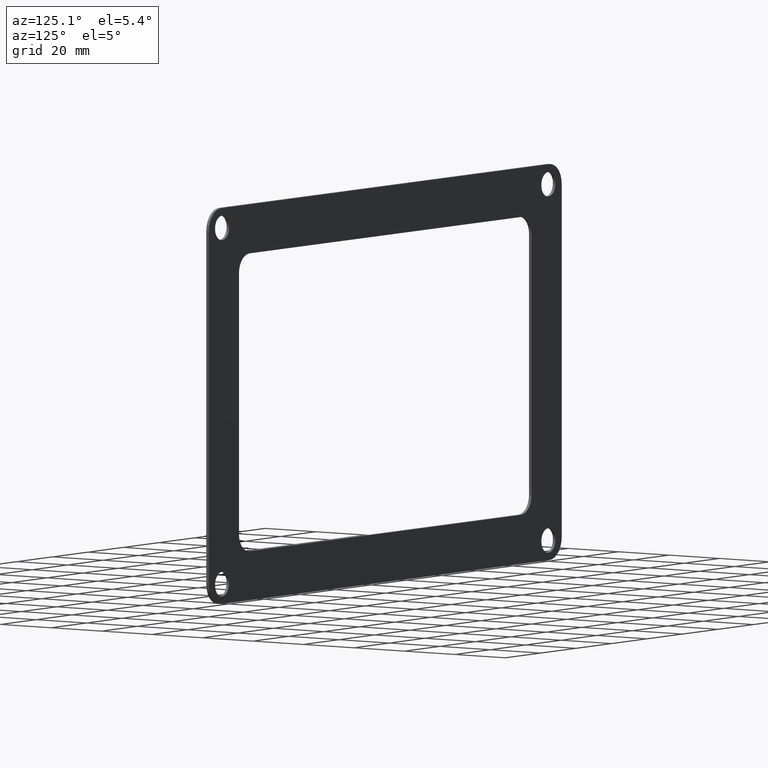
[diagram: clean part render]
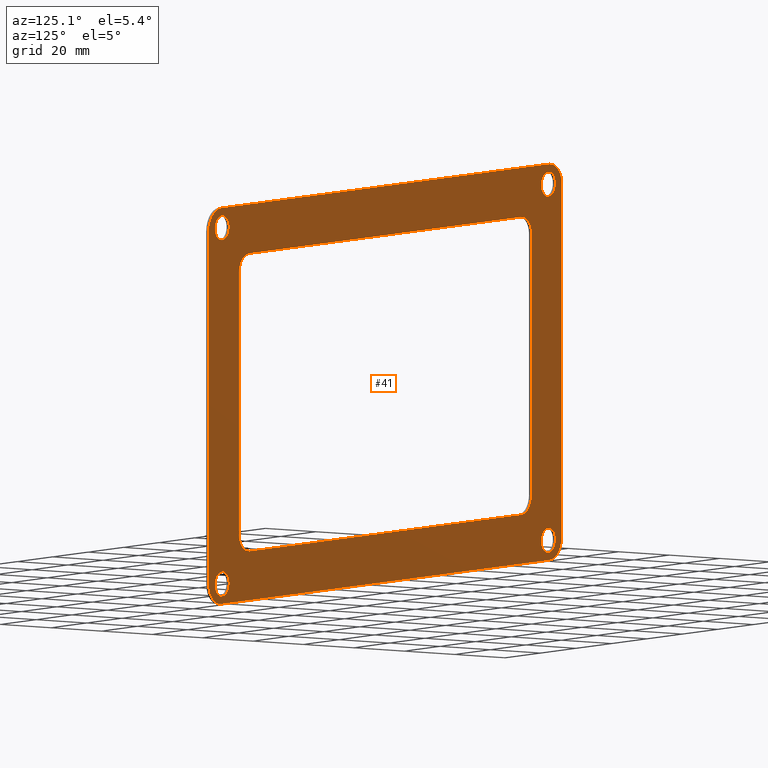
[diagram: same view with one face highlighted and labeled with its STEP entity id]
A machine part, auxiliary view. The second image highlights one B-rep face of the part: STEP entity #41.
In plain terms, the highlighted planar face has unit normal (-0, 1, 0).
Its self-contained STEP definition (entity closure, byte-faithful):
#41=ADVANCED_FACE('',(#82,#83,#84,#85,#86,#87),#81,.T.);
#81=PLANE('',#349);
#82=FACE_OUTER_BOUND('',#350,.T.);
#83=FACE_BOUND('',#351,.T.);
#84=FACE_BOUND('',#352,.T.);
#85=FACE_BOUND('',#353,.T.);
#86=FACE_BOUND('',#354,.T.);
#87=FACE_BOUND('',#355,.T.);
#346=CARTESIAN_POINT('',(-1.09500000000E+002,0.00000000000E+000,-7.45000000000E+001));
#347=DIRECTION('',(-0.00000000000E+000,1.00000000000E+000,0.00000000000E+000));
#348=DIRECTION('',(0.00000000000E+000,0.00000000000E+000,1.00000000000E+000));
#349=AXIS2_PLACEMENT_3D('',#346,#347,#348);
#350=EDGE_LOOP('',(#500,#501,#502,#503,#504,#505,#506,#507));
#351=EDGE_LOOP('',(#508,#509));
#352=EDGE_LOOP('',(#510,#511,#512,#513,#514,#515,#516,#517));
#353=EDGE_LOOP('',(#518,#519));
#354=EDGE_LOOP('',(#520,#521));
#355=EDGE_LOOP('',(#522,#523));
#500=ORIENTED_EDGE('',*,*,#644,.F.);
#501=ORIENTED_EDGE('',*,*,#645,.F.);
#502=ORIENTED_EDGE('',*,*,#646,.F.);
#503=ORIENTED_EDGE('',*,*,#647,.F.);
#504=ORIENTED_EDGE('',*,*,#648,.F.);
#505=ORIENTED_EDGE('',*,*,#649,.F.);
#506=ORIENTED_EDGE('',*,*,#650,.F.);
#507=ORIENTED_EDGE('',*,*,#651,.F.);
#508=ORIENTED_EDGE('',*,*,#652,.T.);
#509=ORIENTED_EDGE('',*,*,#653,.T.);
#510=ORIENTED_EDGE('',*,*,#654,.T.);
#511=ORIENTED_EDGE('',*,*,#655,.T.);
#512=ORIENTED_EDGE('',*,*,#656,.T.);
#513=ORIENTED_EDGE('',*,*,#657,.T.);
#514=ORIENTED_EDGE('',*,*,#658,.T.);
#515=ORIENTED_EDGE('',*,*,#659,.T.);
#516=ORIENTED_EDGE('',*,*,#660,.T.);
#517=ORIENTED_EDGE('',*,*,#661,.T.);
#518=ORIENTED_EDGE('',*,*,#662,.T.);
#519=ORIENTED_EDGE('',*,*,#663,.T.);
#520=ORIENTED_EDGE('',*,*,#664,.T.);
#521=ORIENTED_EDGE('',*,*,#665,.T.);
#522=ORIENTED_EDGE('',*,*,#666,.T.);
#523=ORIENTED_EDGE('',*,*,#667,.T.);
#644=EDGE_CURVE('',#860,#861,#862,.T.);
#645=EDGE_CURVE('',#868,#860,#869,.T.);
#646=EDGE_CURVE('',#875,#868,#876,.T.);
#647=EDGE_CURVE('',#882,#875,#883,.T.);
#648=EDGE_CURVE('',#889,#882,#890,.T.);
#649=EDGE_CURVE('',#896,#889,#897,.T.);
#650=EDGE_CURVE('',#903,#896,#904,.T.);
#651=EDGE_CURVE('',#861,#903,#910,.T.);
#652=EDGE_CURVE('',#916,#917,#918,.T.);
#653=EDGE_CURVE('',#917,#916,#924,.T.);
#654=EDGE_CURVE('',#930,#931,#932,.T.);
#655=EDGE_CURVE('',#931,#938,#939,.T.);
#656=EDGE_CURVE('',#938,#945,#946,.T.);
#657=EDGE_CURVE('',#945,#952,#953,.T.);
#658=EDGE_CURVE('',#952,#959,#960,.T.);
#659=EDGE_CURVE('',#959,#966,#967,.T.);
#660=EDGE_CURVE('',#966,#973,#974,.T.);
#661=EDGE_CURVE('',#973,#930,#980,.T.);
#662=EDGE_CURVE('',#986,#987,#988,.T.);
#663=EDGE_CURVE('',#987,#986,#994,.T.);
#664=EDGE_CURVE('',#1000,#1001,#1002,.T.);
#665=EDGE_CURVE('',#1001,#1000,#1008,.T.);
#666=EDGE_CURVE('',#1014,#1015,#1016,.T.);
#667=EDGE_CURVE('',#1015,#1014,#1022,.T.);
#860=VERTEX_POINT('',#1284);
#861=VERTEX_POINT('',#1285);
#862=CIRCLE('',#1289,7.00000000000E+000);
#868=VERTEX_POINT('',#1290);
#869=LINE('',#1291,#1292);
#875=VERTEX_POINT('',#1294);
#876=CIRCLE('',#1298,7.00000000000E+000);
#882=VERTEX_POINT('',#1299);
#883=LINE('',#1300,#1301);
#889=VERTEX_POINT('',#1303);
#890=CIRCLE('',#1307,7.00000000000E+000);
#896=VERTEX_POINT('',#1308);
#897=LINE('',#1309,#1310);
#903=VERTEX_POINT('',#1312);
#904=CIRCLE('',#1316,7.00000000000E+000);
#910=LINE('',#1317,#1318);
#916=VERTEX_POINT('',#1320);
#917=VERTEX_POINT('',#1321);
#918=CIRCLE('',#1325,4.00000000000E+000);
#924=CIRCLE('',#1329,4.00000000000E+000);
#930=VERTEX_POINT('',#1330);
#931=VERTEX_POINT('',#1331);
#932=CIRCLE('',#1335,6.00000000000E+000);
#938=VERTEX_POINT('',#1336);
#939=LINE('',#1337,#1338);
#945=VERTEX_POINT('',#1340);
#946=CIRCLE('',#1344,6.00000000000E+000);
#952=VERTEX_POINT('',#1345);
#953=LINE('',#1346,#1347);
#959=VERTEX_POINT('',#1349);
#960=CIRCLE('',#1353,6.00000000000E+000);
#966=VERTEX_POINT('',#1354);
#967=LINE('',#1355,#1356);
#973=VERTEX_POINT('',#1358);
#974=CIRCLE('',#1362,6.00000000000E+000);
#980=LINE('',#1363,#1364);
#986=VERTEX_POINT('',#1366);
#987=VERTEX_POINT('',#1367);
#988=CIRCLE('',#1371,4.00000000000E+000);
#994=CIRCLE('',#1375,4.00000000000E+000);
#1000=VERTEX_POINT('',#1376);
#1001=VERTEX_POINT('',#1377);
#1002=CIRCLE('',#1381,4.00000000000E+000);
#1008=CIRCLE('',#1385,4.00000000000E+000);
#1014=VERTEX_POINT('',#1386);
#1015=VERTEX_POINT('',#1387);
#1016=CIRCLE('',#1391,4.00000000000E+000);
#1022=CIRCLE('',#1395,4.00000000000E+000);
#1284=CARTESIAN_POINT('',(-9.25000000000E+001,0.00000000000E+000,6.45000000000E+001));
#1285=CARTESIAN_POINT('',(-9.95000000000E+001,0.00000000000E+000,5.75000000000E+001));
#1286=CARTESIAN_POINT('',(-9.25000000000E+001,0.00000000000E+000,5.75000000000E+001));
#1287=DIRECTION('',(0.00000000000E+000,-1.00000000000E+000,0.00000000000E+000));
#1288=DIRECTION('',(-0.00000000000E+000,-0.00000000000E+000,-1.00000000000E+000));
#1289=AXIS2_PLACEMENT_3D('',#1286,#1287,#1288);
#1290=CARTESIAN_POINT('',(9.25000000000E+001,0.00000000000E+000,6.45000000000E+001));
#1291=CARTESIAN_POINT('',(9.25000000000E+001,0.00000000000E+000,6.45000000000E+001));
#1292=VECTOR('',#1293,1.85000000000E+002);
#1293=DIRECTION('',(-1.00000000000E+000,0.00000000000E+000,0.00000000000E+000));
#1294=CARTESIAN_POINT('',(9.95000000000E+001,0.00000000000E+000,5.75000000000E+001));
#1295=CARTESIAN_POINT('',(9.25000000000E+001,0.00000000000E+000,5.75000000000E+001));
#1296=DIRECTION('',(0.00000000000E+000,-1.00000000000E+000,0.00000000000E+000));
#1297=DIRECTION('',(-0.00000000000E+000,-0.00000000000E+000,-1.00000000000E+000));
#1298=AXIS2_PLACEMENT_3D('',#1295,#1296,#1297);
#1299=CARTESIAN_POINT('',(9.95000000000E+001,0.00000000000E+000,-5.75000000000E+001));
#1300=CARTESIAN_POINT('',(9.95000000000E+001,0.00000000000E+000,-5.75000000000E+001));
#1301=VECTOR('',#1302,1.15000000000E+002);
#1302=DIRECTION('',(0.00000000000E+000,0.00000000000E+000,1.00000000000E+000));
#1303=CARTESIAN_POINT('',(9.25000000000E+001,0.00000000000E+000,-6.45000000000E+001));
#1304=CARTESIAN_POINT('',(9.25000000000E+001,0.00000000000E+000,-5.75000000000E+001));
#1305=DIRECTION('',(0.00000000000E+000,-1.00000000000E+000,0.00000000000E+000));
#1306=DIRECTION('',(-0.00000000000E+000,-0.00000000000E+000,-1.00000000000E+000));
#1307=AXIS2_PLACEMENT_3D('',#1304,#1305,#1306);
#1308=CARTESIAN_POINT('',(-9.25000000000E+001,0.00000000000E+000,-6.45000000000E+001));
#1309=CARTESIAN_POINT('',(-9.25000000000E+001,0.00000000000E+000,-6.45000000000E+001));
#1310=VECTOR('',#1311,1.85000000000E+002);
#1311=DIRECTION('',(1.00000000000E+000,0.00000000000E+000,0.00000000000E+000));
#1312=CARTESIAN_POINT('',(-9.95000000000E+001,0.00000000000E+000,-5.75000000000E+001));
#1313=CARTESIAN_POINT('',(-9.25000000000E+001,0.00000000000E+000,-5.75000000000E+001));
#1314=DIRECTION('',(0.00000000000E+000,-1.00000000000E+000,0.00000000000E+000));
#1315=DIRECTION('',(-0.00000000000E+000,-0.00000000000E+000,-1.00000000000E+000));
#1316=AXIS2_PLACEMENT_3D('',#1313,#1314,#1315);
#1317=CARTESIAN_POINT('',(-9.95000000000E+001,0.00000000000E+000,5.75000000000E+001));
#1318=VECTOR('',#1319,1.15000000000E+002);
#1319=DIRECTION('',(0.00000000000E+000,0.00000000000E+000,-1.00000000000E+000));
#1320=CARTESIAN_POINT('',(-9.20000000000E+001,0.00000000000E+000,-5.40000000000E+001));
#1321=CARTESIAN_POINT('',(-9.20000000000E+001,0.00000000000E+000,-6.20000000000E+001));
#1322=CARTESIAN_POINT('',(-9.20000000000E+001,0.00000000000E+000,-5.80000000000E+001));
#1323=DIRECTION('',(0.00000000000E+000,-1.00000000000E+000,0.00000000000E+000));
#1324=DIRECTION('',(-1.22460635382E-016,0.00000000000E+000,1.00000000000E+000));
#1325=AXIS2_PLACEMENT_3D('',#1322,#1323,#1324);
#1326=CARTESIAN_POINT('',(-9.20000000000E+001,0.00000000000E+000,-5.80000000000E+001));
#1327=DIRECTION('',(0.00000000000E+000,-1.00000000000E+000,0.00000000000E+000));
#1328=DIRECTION('',(-1.22460635382E-016,0.00000000000E+000,1.00000000000E+000));
#1329=AXIS2_PLACEMENT_3D('',#1326,#1327,#1328);
#1330=CARTESIAN_POINT('',(-8.25000000001E+001,0.00000000000E+000,-4.25000000000E+001));
#1331=CARTESIAN_POINT('',(-7.65000000001E+001,0.00000000000E+000,-4.85000000000E+001));
#1332=CARTESIAN_POINT('',(-7.65000000001E+001,0.00000000000E+000,-4.25000000000E+001));
#1333=DIRECTION('',(0.00000000000E+000,-1.00000000000E+000,0.00000000000E+000));
#1334=DIRECTION('',(-0.00000000000E+000,-0.00000000000E+000,-1.00000000000E+000));
#1335=AXIS2_PLACEMENT_3D('',#1332,#1333,#1334);
#1336=CARTESIAN_POINT('',(7.64999999999E+001,0.00000000000E+000,-4.85000000000E+001));
#1337=CARTESIAN_POINT('',(-7.65000000001E+001,0.00000000000E+000,-4.85000000000E+001));
#1338=VECTOR('',#1339,1.53000000000E+002);
#1339=DIRECTION('',(1.00000000000E+000,0.00000000000E+000,0.00000000000E+000));
#1340=CARTESIAN_POINT('',(8.24999999999E+001,0.00000000000E+000,-4.25000000000E+001));
#1341=CARTESIAN_POINT('',(7.64999999999E+001,0.00000000000E+000,-4.25000000000E+001));
#1342=DIRECTION('',(0.00000000000E+000,-1.00000000000E+000,0.00000000000E+000));
#1343=DIRECTION('',(-0.00000000000E+000,-0.00000000000E+000,-1.00000000000E+000));
#1344=AXIS2_PLACEMENT_3D('',#1341,#1342,#1343);
#1345=CARTESIAN_POINT('',(8.25000000001E+001,0.00000000000E+000,4.25000000000E+001));
#1346=CARTESIAN_POINT('',(8.24999999999E+001,0.00000000000E+000,-4.25000000000E+001));
#1347=VECTOR('',#1348,8.50000000000E+001);
#1348=DIRECTION('',(2.20351841349E-012,0.00000000000E+000,1.00000000000E+000));
#1349=CARTESIAN_POINT('',(7.65000000001E+001,0.00000000000E+000,4.85000000000E+001));
#1350=CARTESIAN_POINT('',(7.65000000001E+001,0.00000000000E+000,4.25000000000E+001));
#1351=DIRECTION('',(0.00000000000E+000,-1.00000000000E+000,0.00000000000E+000));
#1352=DIRECTION('',(-0.00000000000E+000,-0.00000000000E+000,-1.00000000000E+000));
#1353=AXIS2_PLACEMENT_3D('',#1350,#1351,#1352);
#1354=CARTESIAN_POINT('',(-7.64999999999E+001,0.00000000000E+000,4.85000000000E+001));
#1355=CARTESIAN_POINT('',(7.65000000001E+001,0.00000000000E+000,4.85000000000E+001));
#1356=VECTOR('',#1357,1.53000000000E+002);
#1357=DIRECTION('',(-1.00000000000E+000,0.00000000000E+000,0.00000000000E+000));
#1358=CARTESIAN_POINT('',(-8.24999999999E+001,0.00000000000E+000,4.25000000000E+001));
#1359=CARTESIAN_POINT('',(-7.64999999999E+001,0.00000000000E+000,4.25000000000E+001));
#1360=DIRECTION('',(0.00000000000E+000,-1.00000000000E+000,0.00000000000E+000));
#1361=DIRECTION('',(-0.00000000000E+000,-0.00000000000E+000,-1.00000000000E+000));
#1362=AXIS2_PLACEMENT_3D('',#1359,#1360,#1361);
#1363=CARTESIAN_POINT('',(-8.24999999999E+001,0.00000000000E+000,4.25000000000E+001));
#1364=VECTOR('',#1365,8.50000000000E+001);
#1365=DIRECTION('',(-2.19716532550E-012,0.00000000000E+000,-1.00000000000E+000));
#1366=CARTESIAN_POINT('',(9.20000000000E+001,0.00000000000E+000,-5.40000000000E+001));
#1367=CARTESIAN_POINT('',(9.20000000000E+001,0.00000000000E+000,-6.20000000000E+001));
#1368=CARTESIAN_POINT('',(9.20000000000E+001,0.00000000000E+000,-5.80000000000E+001));
#1369=DIRECTION('',(0.00000000000E+000,-1.00000000000E+000,0.00000000000E+000));
#1370=DIRECTION('',(-1.22460635382E-016,0.00000000000E+000,1.00000000000E+000));
#1371=AXIS2_PLACEMENT_3D('',#1368,#1369,#1370);
#1372=CARTESIAN_POINT('',(9.20000000000E+001,0.00000000000E+000,-5.80000000000E+001));
#1373=DIRECTION('',(0.00000000000E+000,-1.00000000000E+000,0.00000000000E+000));
#1374=DIRECTION('',(-1.22460635382E-016,0.00000000000E+000,1.00000000000E+000));
#1375=AXIS2_PLACEMENT_3D('',#1372,#1373,#1374);
#1376=CARTESIAN_POINT('',(9.20000000000E+001,0.00000000000E+000,6.20000000000E+001));
#1377=CARTESIAN_POINT('',(9.20000000000E+001,0.00000000000E+000,5.40000000000E+001));
#1378=CARTESIAN_POINT('',(9.20000000000E+001,0.00000000000E+000,5.80000000000E+001));
#1379=DIRECTION('',(0.00000000000E+000,-1.00000000000E+000,0.00000000000E+000));
#1380=DIRECTION('',(-1.22460635382E-016,0.00000000000E+000,1.00000000000E+000));
#1381=AXIS2_PLACEMENT_3D('',#1378,#1379,#1380);
#1382=CARTESIAN_POINT('',(9.20000000000E+001,0.00000000000E+000,5.80000000000E+001));
#1383=DIRECTION('',(0.00000000000E+000,-1.00000000000E+000,0.00000000000E+000));
#1384=DIRECTION('',(-1.22460635382E-016,0.00000000000E+000,1.00000000000E+000));
#1385=AXIS2_PLACEMENT_3D('',#1382,#1383,#1384);
#1386=CARTESIAN_POINT('',(-9.20000000000E+001,0.00000000000E+000,6.20000000000E+001));
#1387=CARTESIAN_POINT('',(-9.20000000000E+001,0.00000000000E+000,5.40000000000E+001));
#1388=CARTESIAN_POINT('',(-9.20000000000E+001,0.00000000000E+000,5.80000000000E+001));
#1389=DIRECTION('',(0.00000000000E+000,-1.00000000000E+000,0.00000000000E+000));
#1390=DIRECTION('',(-1.22460635382E-016,0.00000000000E+000,1.00000000000E+000));
#1391=AXIS2_PLACEMENT_3D('',#1388,#1389,#1390);
#1392=CARTESIAN_POINT('',(-9.20000000000E+001,0.00000000000E+000,5.80000000000E+001));
#1393=DIRECTION('',(0.00000000000E+000,-1.00000000000E+000,0.00000000000E+000));
#1394=DIRECTION('',(-1.22460635382E-016,0.00000000000E+000,1.00000000000E+000));
#1395=AXIS2_PLACEMENT_3D('',#1392,#1393,#1394);